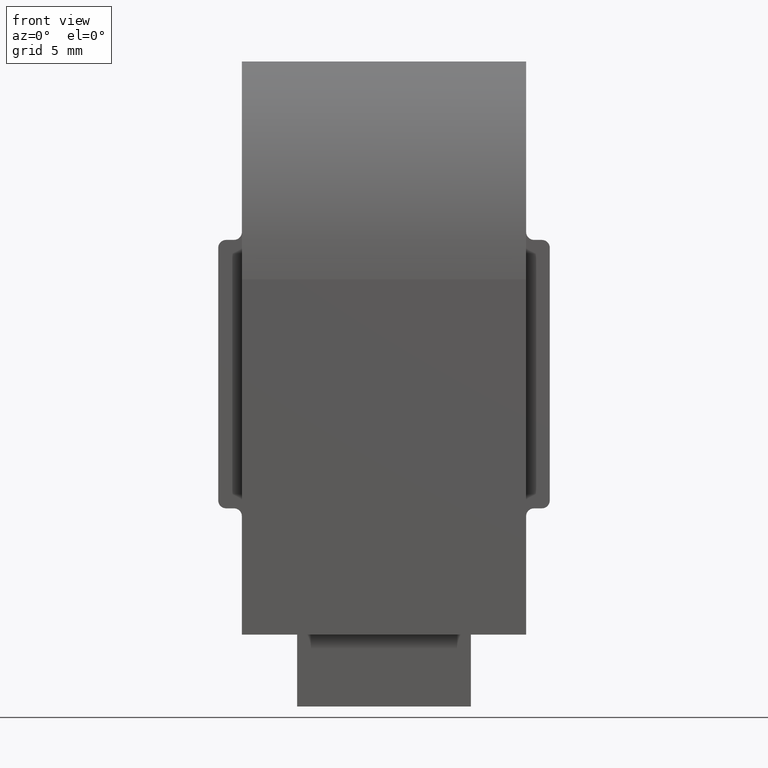
[diagram: clean part render]
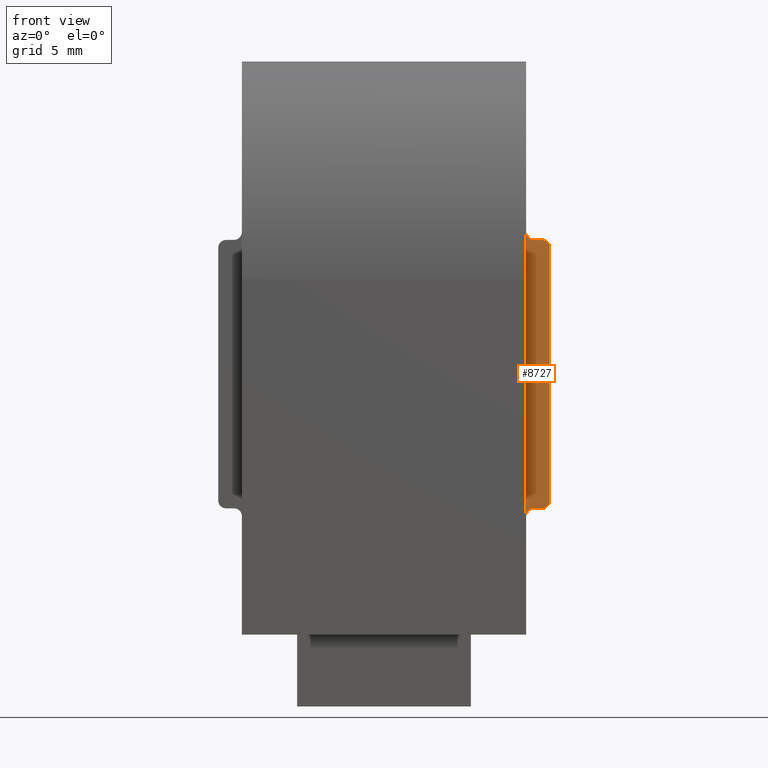
[diagram: same view with one face highlighted and labeled with its STEP entity id]
A machine part, front view. The second image highlights one B-rep face of the part: STEP entity #8727.
In plain terms, the highlighted planar face has unit normal (0, 1, 0).
Its self-contained STEP definition (entity closure, byte-faithful):
#191 = LINE ( 'NONE', #10924, #14131 ) ;
#642 = EDGE_CURVE ( 'NONE', #1318, #12655, #3309, .T. ) ;
#932 = ORIENTED_EDGE ( 'NONE', *, *, #10581, .T. ) ;
#1318 = VERTEX_POINT ( 'NONE', #9239 ) ;
#1780 = FACE_OUTER_BOUND ( 'NONE', #9108, .T. ) ;
#1843 = DIRECTION ( 'NONE',  ( -1.000000000000000000, -0.000000000000000000, -0.000000000000000000 ) ) ;
#1959 = CARTESIAN_POINT ( 'NONE',  ( 9.500000000000000000, 2.899999999999988365, 7.999999999999976019 ) ) ;
#2162 = AXIS2_PLACEMENT_3D ( 'NONE', #9038, #2467, #17223 ) ;
#2467 = DIRECTION ( 'NONE',  ( -0.000000000000000000, 1.000000000000000000, 1.530638361156006245E-16 ) ) ;
#2610 = CARTESIAN_POINT ( 'NONE',  ( 9.999999999999998224, 2.899999999999988365, 8.499999999999976907 ) ) ;
#2638 = VERTEX_POINT ( 'NONE', #6925 ) ;
#2648 = ORIENTED_EDGE ( 'NONE', *, *, #4817, .F. ) ;
#2857 = DIRECTION ( 'NONE',  ( -1.000000000000000000, -0.000000000000000000, -0.000000000000000000 ) ) ;
#2934 = LINE ( 'NONE', #9497, #3772 ) ;
#3215 = DIRECTION ( 'NONE',  ( 0.000000000000000000, -1.000000000000000000, -1.530638361156006245E-16 ) ) ;
#3309 = CIRCLE ( 'NONE', #9322, 0.5000000000000004441 ) ;
#3320 = CARTESIAN_POINT ( 'NONE',  ( 10.49999999999999822, 2.899999999999986589, 24.99999999999997868 ) ) ;
#3555 = VERTEX_POINT ( 'NONE', #13065 ) ;
#3649 = AXIS2_PLACEMENT_3D ( 'NONE', #16583, #8476, #8297 ) ;
#3658 = CIRCLE ( 'NONE', #3649, 0.5000000000000004441 ) ;
#3772 = VECTOR ( 'NONE', #3958, 1000.000000000000000 ) ;
#3958 = DIRECTION ( 'NONE',  ( -0.000000000000000000, 1.530638361156006245E-16, -1.000000000000000000 ) ) ;
#3986 = VERTEX_POINT ( 'NONE', #7214 ) ;
#4182 = EDGE_CURVE ( 'NONE', #13312, #15161, #13129, .T. ) ;
#4392 = CARTESIAN_POINT ( 'NONE',  ( 9.999999999999998224, 2.899999999999986589, 24.99999999999997868 ) ) ;
#4415 = EDGE_CURVE ( 'NONE', #1318, #2638, #14353, .T. ) ;
#4766 = EDGE_CURVE ( 'NONE', #15161, #3555, #2934, .T. ) ;
#4817 = EDGE_CURVE ( 'NONE', #3986, #12165, #191, .T. ) ;
#4938 = CARTESIAN_POINT ( 'NONE',  ( 9.000000000000000000, 2.899999999999986589, 25.49999999999997868 ) ) ;
#5103 = DIRECTION ( 'NONE',  ( 0.000000000000000000, -1.000000000000000000, -1.530638361156006245E-16 ) ) ;
#5403 = AXIS2_PLACEMENT_3D ( 'NONE', #2610, #5103, #12017 ) ;
#6019 = ORIENTED_EDGE ( 'NONE', *, *, #14522, .T. ) ;
#6195 = CARTESIAN_POINT ( 'NONE',  ( 9.500000000000000000, 2.899999999999986589, 24.99999999999997868 ) ) ;
#6367 = VECTOR ( 'NONE', #1843, 1000.000000000000000 ) ;
#6925 = CARTESIAN_POINT ( 'NONE',  ( 10.49999999999999822, 2.899999999999988365, 8.499999999999976907 ) ) ;
#7214 = CARTESIAN_POINT ( 'NONE',  ( 9.999999999999998224, 2.899999999999988365, 7.999999999999976019 ) ) ;
#8297 = DIRECTION ( 'NONE',  ( 0.000000000000000000, 0.000000000000000000, 1.000000000000000000 ) ) ;
#8476 = DIRECTION ( 'NONE',  ( -0.000000000000000000, 1.000000000000000000, 1.530638361156006245E-16 ) ) ;
#8580 = DIRECTION ( 'NONE',  ( -0.000000000000000000, 1.000000000000000000, 1.530638361156006245E-16 ) ) ;
#8727 = ADVANCED_FACE ( 'NONE', ( #1780 ), #12797, .F. ) ;
#9038 = CARTESIAN_POINT ( 'NONE',  ( 9.500000000000000000, 2.899999999999986589, 25.49999999999997868 ) ) ;
#9108 = EDGE_LOOP ( 'NONE', ( #2648, #932, #15234, #15935, #11522, #14873, #14241, #6019 ) ) ;
#9191 = DIRECTION ( 'NONE',  ( -0.000000000000000000, 1.530638361156006245E-16, -1.000000000000000000 ) ) ;
#9239 = CARTESIAN_POINT ( 'NONE',  ( 10.49999999999999822, 2.899999999999986589, 24.49999999999997513 ) ) ;
#9322 = AXIS2_PLACEMENT_3D ( 'NONE', #11287, #3215, #12665 ) ;
#9497 = CARTESIAN_POINT ( 'NONE',  ( 9.000000000000000000, 2.899999999999988365, 7.999999999999976019 ) ) ;
#9881 = CARTESIAN_POINT ( 'NONE',  ( 10.49999999999999822, 2.899999999999988365, 7.999999999999976019 ) ) ;
#10124 = EDGE_CURVE ( 'NONE', #12655, #13312, #16977, .T. ) ;
#10330 = VECTOR ( 'NONE', #9191, 1000.000000000000000 ) ;
#10581 = EDGE_CURVE ( 'NONE', #3986, #2638, #17380, .T. ) ;
#10924 = CARTESIAN_POINT ( 'NONE',  ( 10.49999999999999822, 2.899999999999988365, 7.999999999999976019 ) ) ;
#11287 = CARTESIAN_POINT ( 'NONE',  ( 9.999999999999998224, 2.899999999999986589, 24.49999999999997513 ) ) ;
#11294 = DIRECTION ( 'NONE',  ( 0.000000000000000000, -1.530638361156006245E-16, 1.000000000000000000 ) ) ;
#11522 = ORIENTED_EDGE ( 'NONE', *, *, #10124, .T. ) ;
#12017 = DIRECTION ( 'NONE',  ( 0.000000000000000000, 0.000000000000000000, 1.000000000000000000 ) ) ;
#12165 = VERTEX_POINT ( 'NONE', #1959 ) ;
#12655 = VERTEX_POINT ( 'NONE', #4392 ) ;
#12665 = DIRECTION ( 'NONE',  ( 0.000000000000000000, 0.000000000000000000, 1.000000000000000000 ) ) ;
#12797 = PLANE ( 'NONE',  #13136 ) ;
#13065 = CARTESIAN_POINT ( 'NONE',  ( 9.000000000000000000, 2.899999999999988365, 7.499999999999975131 ) ) ;
#13129 = CIRCLE ( 'NONE', #2162, 0.5000000000000004441 ) ;
#13136 = AXIS2_PLACEMENT_3D ( 'NONE', #9881, #8580, #11294 ) ;
#13302 = CARTESIAN_POINT ( 'NONE',  ( 10.49999999999999822, 2.899999999999988365, 7.999999999999976019 ) ) ;
#13312 = VERTEX_POINT ( 'NONE', #6195 ) ;
#14131 = VECTOR ( 'NONE', #2857, 1000.000000000000000 ) ;
#14241 = ORIENTED_EDGE ( 'NONE', *, *, #4766, .T. ) ;
#14353 = LINE ( 'NONE', #13302, #10330 ) ;
#14522 = EDGE_CURVE ( 'NONE', #3555, #12165, #3658, .T. ) ;
#14873 = ORIENTED_EDGE ( 'NONE', *, *, #4182, .T. ) ;
#15161 = VERTEX_POINT ( 'NONE', #4938 ) ;
#15234 = ORIENTED_EDGE ( 'NONE', *, *, #4415, .F. ) ;
#15935 = ORIENTED_EDGE ( 'NONE', *, *, #642, .T. ) ;
#16583 = CARTESIAN_POINT ( 'NONE',  ( 9.500000000000000000, 2.899999999999988365, 7.499999999999975131 ) ) ;
#16977 = LINE ( 'NONE', #3320, #6367 ) ;
#17223 = DIRECTION ( 'NONE',  ( 0.000000000000000000, 0.000000000000000000, 1.000000000000000000 ) ) ;
#17380 = CIRCLE ( 'NONE', #5403, 0.5000000000000004441 ) ;